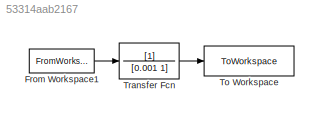
MODEL slx_53314aab2167
KIND model
CONFIG AbsTol = auto
CONFIG EnableMultiTasking = off
CONFIG FixedStep = auto
CONFIG MaxStep = auto
CONFIG MinStep = auto
CONFIG RelTol = 1e-3
CONFIG SampleTimeConstraint = Unconstrained
CONFIG SolverName = VariableStepAuto
CONFIG StartTime = 0.0
CONFIG StopTime = 10.0
BLOCK [FromWorkspace] From Workspace1
  VariableName = simin
BLOCK [ToWorkspace] To Workspace
  FixptAsFi = on
  MaxDataPoints = inf
  SampleTime = -1
  SaveFormat = Timeseries
  VariableName = y_out
BLOCK [TransferFcn] Transfer Fcn
  Denominator = [0.001 1]
LINE From Workspace1:1 -> Transfer Fcn:1
LINE Transfer Fcn:1 -> To Workspace:1
